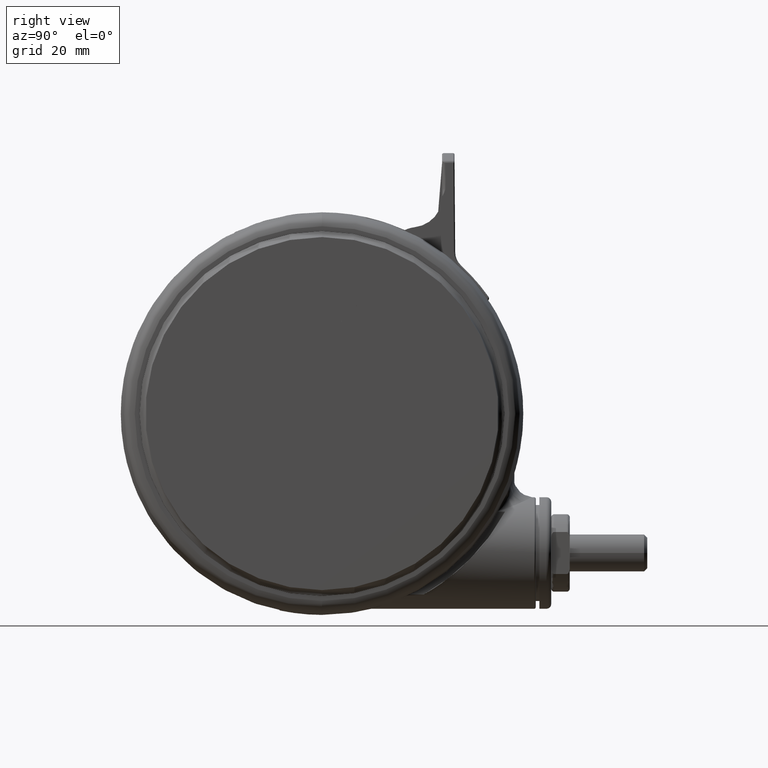
[diagram: clean part render]
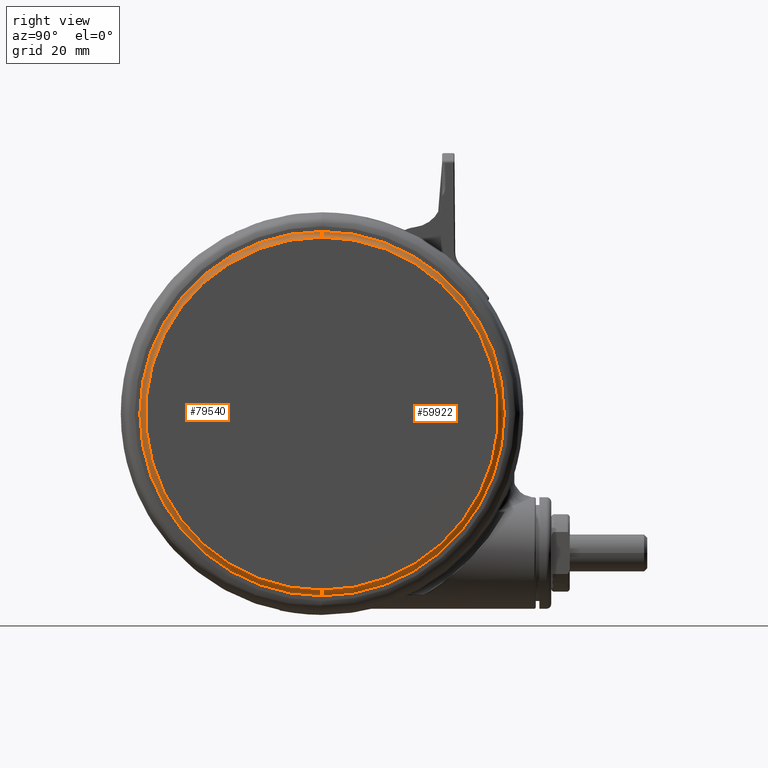
[diagram: same view with one multi-face feature highlighted, each face labeled with its STEP entity id]
A machine part, right view. The highlighted faces form ONE feature: a constant-radius fillet chain: 2 tangent blend faces with common blend radius 2.2 mm. The faces share edges in the B-rep.
Their STEP definitions:
[1] entity #79540 (Torus):
#1472 = VERTEX_POINT ( 'NONE', #54390 ) ;
#5880 = CARTESIAN_POINT ( 'NONE',  ( -59.20000000000000300, 2.300382107023325500E-014, -0.1205505282296627800 ) ) ;
#9846 = AXIS2_PLACEMENT_3D ( 'NONE', #33066, #76944, #39376 ) ;
#12114 = ORIENTED_EDGE ( 'NONE', *, *, #71818, .T. ) ;
#12187 = DIRECTION ( 'NONE',  ( 1.000000000000000000, -3.885780586188053300E-016, 0.0000000000000000000 ) ) ;
#12994 = VERTEX_POINT ( 'NONE', #21966 ) ;
#15455 = CIRCLE ( 'NONE', #16700, 57.00000000000000000 ) ;
#16700 = AXIS2_PLACEMENT_3D ( 'NONE', #21180, #65049, #27471 ) ;
#16722 = EDGE_LOOP ( 'NONE', ( #20878, #12114, #23493, #51108 ) ) ;
#18443 = EDGE_CURVE ( 'NONE', #1472, #12994, #23278, .T. ) ;
#18803 = DIRECTION ( 'NONE',  ( 2.661133787040696400E-016, 1.000000000000000000, 0.0000000000000000000 ) ) ;
#19449 = VERTEX_POINT ( 'NONE', #75648 ) ;
#20878 = ORIENTED_EDGE ( 'NONE', *, *, #18443, .T. ) ;
#20917 = AXIS2_PLACEMENT_3D ( 'NONE', #56394, #18803, #62705 ) ;
#21180 = CARTESIAN_POINT ( 'NONE',  ( 0.0000000000000000000, 0.0000000000000000000, -0.1205505282296627800 ) ) ;
#21966 = CARTESIAN_POINT ( 'NONE',  ( 58.81739130435093400, -1.565209472656019200E-014, -2.287024757482408100 ) ) ;
#22153 = CIRCLE ( 'NONE', #20917, 2.200000000000000600 ) ;
#23278 = CIRCLE ( 'NONE', #9846, 58.81739130434760200 ) ;
#23493 = ORIENTED_EDGE ( 'NONE', *, *, #28362, .F. ) ;
#25095 = CIRCLE ( 'NONE', #73309, 2.200000000000000600 ) ;
#26491 = CARTESIAN_POINT ( 'NONE',  ( 57.00000000000000000, -1.516846258613197000E-014, -0.1205505282296627800 ) ) ;
#27471 = DIRECTION ( 'NONE',  ( -1.000000000000000000, 3.885780586188049900E-016, 0.0000000000000000000 ) ) ;
#28362 = EDGE_CURVE ( 'NONE', #19449, #61897, #15455, .T. ) ;
#33066 = CARTESIAN_POINT ( 'NONE',  ( 0.0000000000000000000, 0.0000000000000000000, -2.287024757482408100 ) ) ;
#39376 = DIRECTION ( 'NONE',  ( 1.000000000000000000, -3.885780586188049900E-016, 0.0000000000000000000 ) ) ;
#39566 = TOROIDAL_SURFACE ( 'NONE', #60352, 59.20000000000000300, 2.200000000000000200 ) ;
#49591 = DIRECTION ( 'NONE',  ( -1.000000000000000000, 3.885780586188049900E-016, 0.0000000000000000000 ) ) ;
#49854 = DIRECTION ( 'NONE',  ( -3.885780586188049900E-016, -1.000000000000000000, -0.0000000000000000000 ) ) ;
#51108 = ORIENTED_EDGE ( 'NONE', *, *, #77504, .F. ) ;
#54390 = CARTESIAN_POINT ( 'NONE',  ( -58.81739130435093400, 2.285514772606726800E-014, -2.287024757482408100 ) ) ;
#56191 = FACE_OUTER_BOUND ( 'NONE', #16722, .T. ) ;
#56394 = CARTESIAN_POINT ( 'NONE',  ( 59.20000000000000300, -1.575391201928092300E-014, -0.1205505282296627800 ) ) ;
#60352 = AXIS2_PLACEMENT_3D ( 'NONE', #68468, #61868, #49591 ) ;
#61868 = DIRECTION ( 'NONE',  ( 0.0000000000000000000, 0.0000000000000000000, -1.000000000000000000 ) ) ;
#61897 = VERTEX_POINT ( 'NONE', #26491 ) ;
#62705 = DIRECTION ( 'NONE',  ( -1.000000000000000000, 2.661133787040694400E-016, 0.0000000000000000000 ) ) ;
#65049 = DIRECTION ( 'NONE',  ( -0.0000000000000000000, -0.0000000000000000000, 1.000000000000000000 ) ) ;
#68468 = CARTESIAN_POINT ( 'NONE',  ( 0.0000000000000000000, 0.0000000000000000000, -0.1205505282296627800 ) ) ;
#71818 = EDGE_CURVE ( 'NONE', #12994, #61897, #22153, .T. ) ;
#73309 = AXIS2_PLACEMENT_3D ( 'NONE', #5880, #49854, #12187 ) ;
#75648 = CARTESIAN_POINT ( 'NONE',  ( -57.00000000000000000, 2.214894934127188600E-014, -0.1205505282296627800 ) ) ;
#76944 = DIRECTION ( 'NONE',  ( 0.0000000000000000000, 0.0000000000000000000, 1.000000000000000000 ) ) ;
#77504 = EDGE_CURVE ( 'NONE', #1472, #19449, #25095, .T. ) ;
#79540 = ADVANCED_FACE ( 'NONE', ( #56191 ), #39566, .F. ) ;
[2] entity #59922 (Torus):
#434 = CARTESIAN_POINT ( 'NONE',  ( 0.0000000000000000000, 0.0000000000000000000, -0.1205505282296627800 ) ) ;
#1472 = VERTEX_POINT ( 'NONE', #54390 ) ;
#2382 = AXIS2_PLACEMENT_3D ( 'NONE', #80235, #42657, #4966 ) ;
#4966 = DIRECTION ( 'NONE',  ( 1.000000000000000000, -3.885780586188049900E-016, 0.0000000000000000000 ) ) ;
#5880 = CARTESIAN_POINT ( 'NONE',  ( -59.20000000000000300, 2.300382107023325500E-014, -0.1205505282296627800 ) ) ;
#10296 = FACE_OUTER_BOUND ( 'NONE', #55345, .T. ) ;
#12187 = DIRECTION ( 'NONE',  ( 1.000000000000000000, -3.885780586188053300E-016, 0.0000000000000000000 ) ) ;
#12994 = VERTEX_POINT ( 'NONE', #21966 ) ;
#14573 = EDGE_CURVE ( 'NONE', #61897, #19449, #71959, .T. ) ;
#16368 = CIRCLE ( 'NONE', #2382, 58.81739130434760200 ) ;
#18803 = DIRECTION ( 'NONE',  ( 2.661133787040696400E-016, 1.000000000000000000, 0.0000000000000000000 ) ) ;
#19121 = DIRECTION ( 'NONE',  ( 0.0000000000000000000, 0.0000000000000000000, -1.000000000000000000 ) ) ;
#19449 = VERTEX_POINT ( 'NONE', #75648 ) ;
#20917 = AXIS2_PLACEMENT_3D ( 'NONE', #56394, #18803, #62705 ) ;
#21966 = CARTESIAN_POINT ( 'NONE',  ( 58.81739130435093400, -1.565209472656019200E-014, -2.287024757482408100 ) ) ;
#22153 = CIRCLE ( 'NONE', #20917, 2.200000000000000600 ) ;
#25023 = TOROIDAL_SURFACE ( 'NONE', #60881, 59.20000000000000300, 2.200000000000000200 ) ;
#25095 = CIRCLE ( 'NONE', #73309, 2.200000000000000600 ) ;
#26491 = CARTESIAN_POINT ( 'NONE',  ( 57.00000000000000000, -1.516846258613197000E-014, -0.1205505282296627800 ) ) ;
#32391 = DIRECTION ( 'NONE',  ( -0.0000000000000000000, -0.0000000000000000000, 1.000000000000000000 ) ) ;
#41811 = ORIENTED_EDGE ( 'NONE', *, *, #14573, .F. ) ;
#42657 = DIRECTION ( 'NONE',  ( 0.0000000000000000000, 0.0000000000000000000, 1.000000000000000000 ) ) ;
#44428 = DIRECTION ( 'NONE',  ( -1.000000000000000000, 3.885780586188049900E-016, 0.0000000000000000000 ) ) ;
#49854 = DIRECTION ( 'NONE',  ( -3.885780586188049900E-016, -1.000000000000000000, -0.0000000000000000000 ) ) ;
#50414 = ORIENTED_EDGE ( 'NONE', *, *, #70087, .T. ) ;
#52150 = ORIENTED_EDGE ( 'NONE', *, *, #77504, .T. ) ;
#54390 = CARTESIAN_POINT ( 'NONE',  ( -58.81739130435093400, 2.285514772606726800E-014, -2.287024757482408100 ) ) ;
#55345 = EDGE_LOOP ( 'NONE', ( #72223, #50414, #52150, #41811 ) ) ;
#56394 = CARTESIAN_POINT ( 'NONE',  ( 59.20000000000000300, -1.575391201928092300E-014, -0.1205505282296627800 ) ) ;
#59922 = ADVANCED_FACE ( 'NONE', ( #10296 ), #25023, .F. ) ;
#60881 = AXIS2_PLACEMENT_3D ( 'NONE', #434, #19121, #44428 ) ;
#61897 = VERTEX_POINT ( 'NONE', #26491 ) ;
#62705 = DIRECTION ( 'NONE',  ( -1.000000000000000000, 2.661133787040694400E-016, 0.0000000000000000000 ) ) ;
#63201 = AXIS2_PLACEMENT_3D ( 'NONE', #69954, #32391, #76282 ) ;
#69954 = CARTESIAN_POINT ( 'NONE',  ( 0.0000000000000000000, 0.0000000000000000000, -0.1205505282296627800 ) ) ;
#70087 = EDGE_CURVE ( 'NONE', #12994, #1472, #16368, .T. ) ;
#71818 = EDGE_CURVE ( 'NONE', #12994, #61897, #22153, .T. ) ;
#71959 = CIRCLE ( 'NONE', #63201, 57.00000000000000000 ) ;
#72223 = ORIENTED_EDGE ( 'NONE', *, *, #71818, .F. ) ;
#73309 = AXIS2_PLACEMENT_3D ( 'NONE', #5880, #49854, #12187 ) ;
#75648 = CARTESIAN_POINT ( 'NONE',  ( -57.00000000000000000, 2.214894934127188600E-014, -0.1205505282296627800 ) ) ;
#76282 = DIRECTION ( 'NONE',  ( -1.000000000000000000, 3.885780586188049900E-016, 0.0000000000000000000 ) ) ;
#77504 = EDGE_CURVE ( 'NONE', #1472, #19449, #25095, .T. ) ;
#80235 = CARTESIAN_POINT ( 'NONE',  ( 0.0000000000000000000, 0.0000000000000000000, -2.287024757482408100 ) ) ;